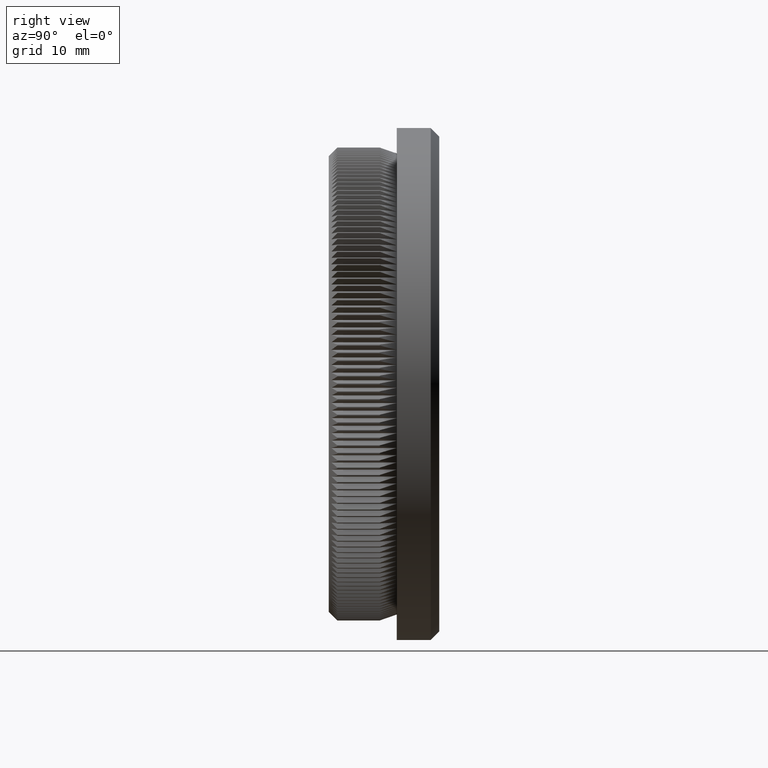
[diagram: clean part render]
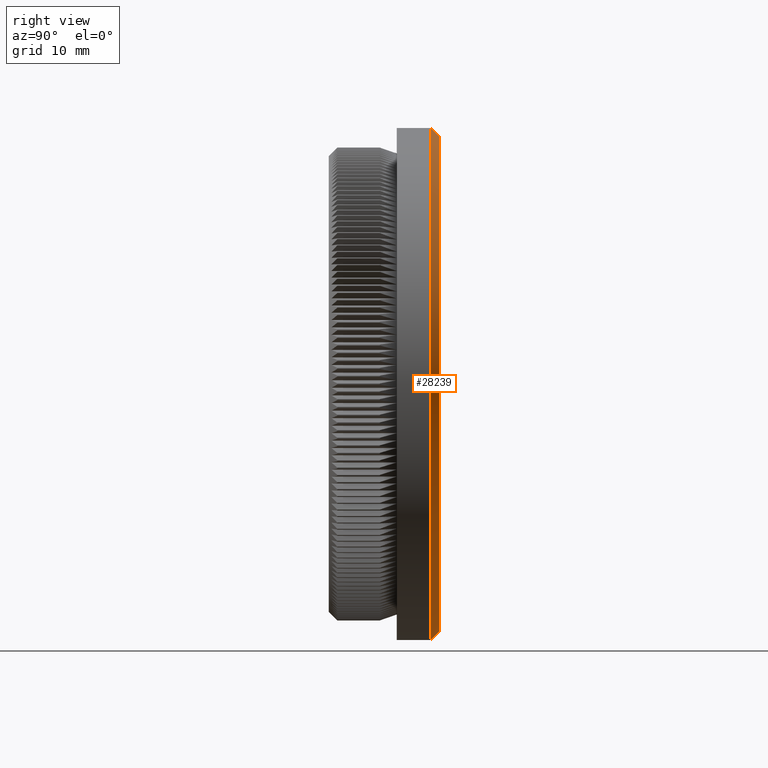
[diagram: same view with one face highlighted and labeled with its STEP entity id]
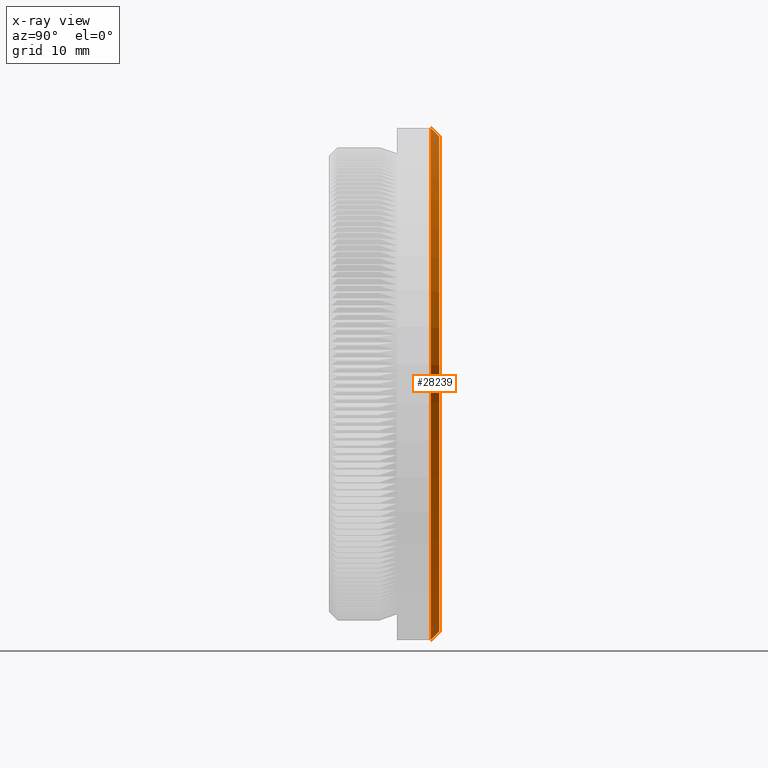
[diagram: x-ray of the same camera — body ghosted, the highlighted face saturated]
A machine part, right view. The second image highlights one B-rep face of the part: STEP entity #28239.
The next image is the same camera in x-ray: the body ghosted, the highlighted face saturated — about 0% of this face is hidden behind the body in this view.
In plain terms, the highlighted conical surface has half-angle 45 deg.
Its self-contained STEP definition (entity closure, byte-faithful):
#275 = VERTEX_POINT ( 'NONE', #27957 ) ;
#940 = CARTESIAN_POINT ( 'NONE',  ( 3.631077759471901200E-015, 13.00000000000000000, 29.14999999999998400 ) ) ;
#2408 = EDGE_LOOP ( 'NONE', ( #20268, #15851, #20980, #24673 ) ) ;
#3124 = CARTESIAN_POINT ( 'NONE',  ( 0.0000000000000000000, 11.99999999999998800, 0.0000000000000000000 ) ) ;
#3298 = EDGE_CURVE ( 'NONE', #32717, #28405, #16118, .T. ) ;
#3387 = CARTESIAN_POINT ( 'NONE',  ( 0.0000000000000000000, 11.99999999999998800, -30.14999999999999500 ) ) ;
#4059 = DIRECTION ( 'NONE',  ( -0.0000000000000000000, -1.000000000000000000, -0.0000000000000000000 ) ) ;
#6235 = CONICAL_SURFACE ( 'NONE', #13798, 30.14999999999999500, 0.7853981633974482800 ) ;
#12806 = DIRECTION ( 'NONE',  ( 0.0000000000000000000, -0.7071067811865474600, -0.7071067811865474600 ) ) ;
#13313 = VECTOR ( 'NONE', #12806, 1000.000000000000100 ) ;
#13798 = AXIS2_PLACEMENT_3D ( 'NONE', #3124, #33224, #21408 ) ;
#15785 = DIRECTION ( 'NONE',  ( 0.0000000000000000000, 0.0000000000000000000, 1.000000000000000000 ) ) ;
#15851 = ORIENTED_EDGE ( 'NONE', *, *, #24165, .T. ) ;
#16118 = LINE ( 'NONE', #3387, #13313 ) ;
#16475 = DIRECTION ( 'NONE',  ( 0.0000000000000000000, 0.0000000000000000000, 1.000000000000000000 ) ) ;
#16643 = CARTESIAN_POINT ( 'NONE',  ( 0.0000000000000000000, 13.00000000000000000, -29.14999999999998400 ) ) ;
#16744 = VECTOR ( 'NONE', #27192, 1000.000000000000100 ) ;
#17043 = EDGE_CURVE ( 'NONE', #26535, #32717, #25404, .T. ) ;
#17484 = FACE_OUTER_BOUND ( 'NONE', #2408, .T. ) ;
#18909 = DIRECTION ( 'NONE',  ( 0.0000000000000000000, 1.000000000000000000, 0.0000000000000000000 ) ) ;
#20268 = ORIENTED_EDGE ( 'NONE', *, *, #17043, .F. ) ;
#20980 = ORIENTED_EDGE ( 'NONE', *, *, #26839, .F. ) ;
#21408 = DIRECTION ( 'NONE',  ( 0.0000000000000000000, 0.0000000000000000000, -1.000000000000000000 ) ) ;
#24165 = EDGE_CURVE ( 'NONE', #26535, #275, #24646, .T. ) ;
#24646 = LINE ( 'NONE', #27068, #16744 ) ;
#24673 = ORIENTED_EDGE ( 'NONE', *, *, #3298, .F. ) ;
#24984 = CIRCLE ( 'NONE', #31941, 30.14999999999999500 ) ;
#25404 = CIRCLE ( 'NONE', #37267, 29.14999999999998400 ) ;
#25434 = CARTESIAN_POINT ( 'NONE',  ( 0.0000000000000000000, 11.99999999999998800, 0.0000000000000000000 ) ) ;
#26535 = VERTEX_POINT ( 'NONE', #940 ) ;
#26839 = EDGE_CURVE ( 'NONE', #28405, #275, #24984, .T. ) ;
#27068 = CARTESIAN_POINT ( 'NONE',  ( 3.692310099429269600E-015, 11.99999999999998800, 30.14999999999999500 ) ) ;
#27192 = DIRECTION ( 'NONE',  ( 8.659560562354932900E-017, -0.7071067811865474600, 0.7071067811865474600 ) ) ;
#27957 = CARTESIAN_POINT ( 'NONE',  ( 3.692310099429269600E-015, 11.99999999999998800, 30.14999999999999500 ) ) ;
#28239 = ADVANCED_FACE ( 'NONE', ( #17484 ), #6235, .T. ) ;
#28405 = VERTEX_POINT ( 'NONE', #37110 ) ;
#30432 = CARTESIAN_POINT ( 'NONE',  ( 0.0000000000000000000, 13.00000000000000000, 0.0000000000000000000 ) ) ;
#31941 = AXIS2_PLACEMENT_3D ( 'NONE', #25434, #4059, #16475 ) ;
#32717 = VERTEX_POINT ( 'NONE', #16643 ) ;
#33224 = DIRECTION ( 'NONE',  ( -0.0000000000000000000, -1.000000000000000000, -0.0000000000000000000 ) ) ;
#37110 = CARTESIAN_POINT ( 'NONE',  ( 0.0000000000000000000, 11.99999999999998800, -30.14999999999999500 ) ) ;
#37267 = AXIS2_PLACEMENT_3D ( 'NONE', #30432, #18909, #15785 ) ;